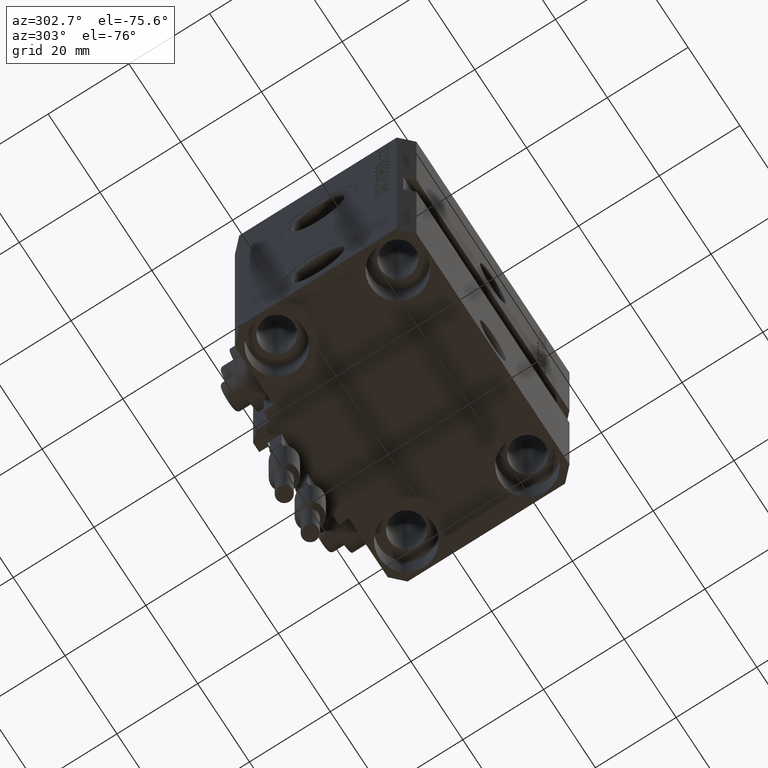
[diagram: clean part render]
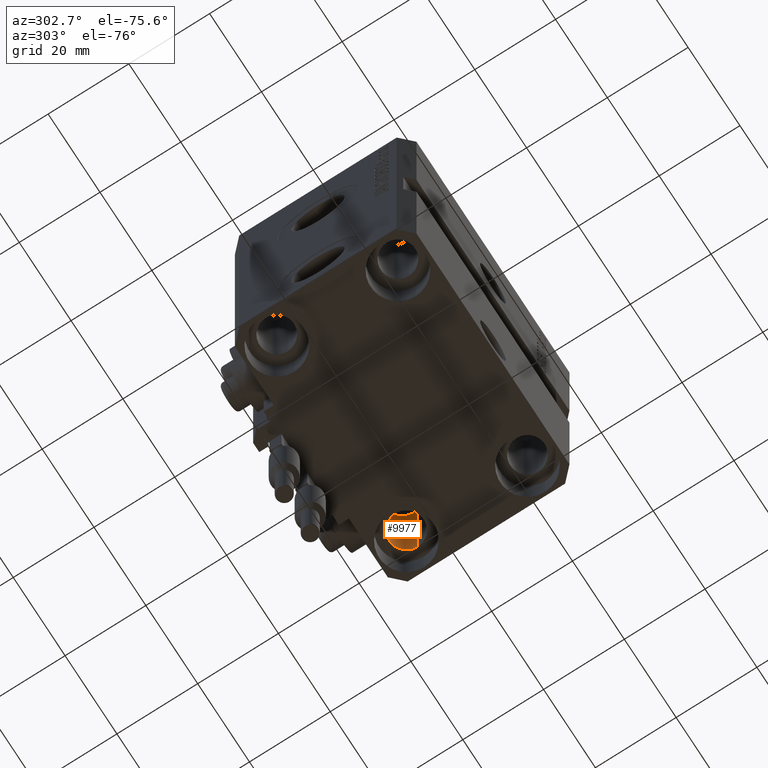
[diagram: same view with one face highlighted and labeled with its STEP entity id]
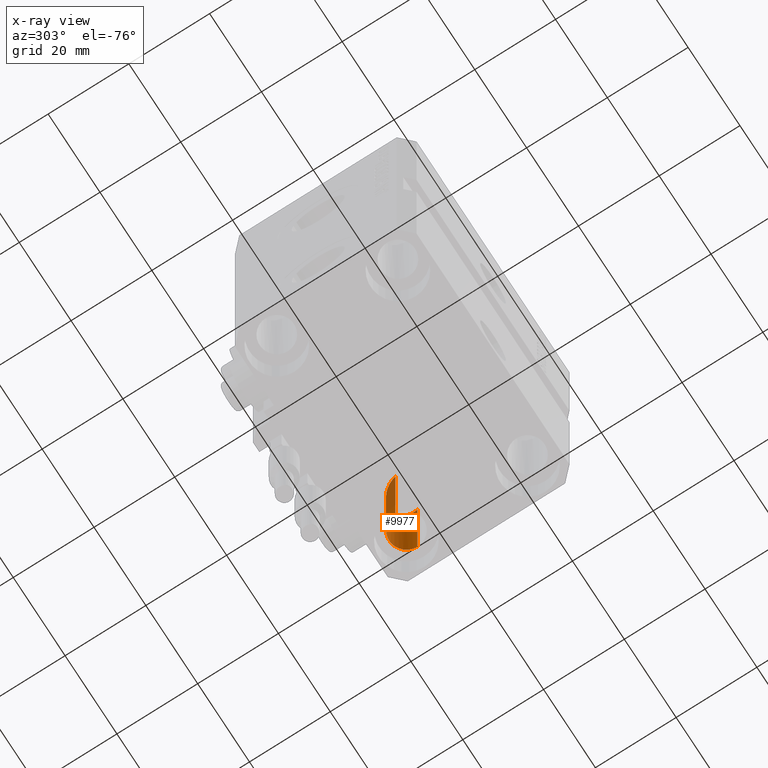
[diagram: x-ray of the same camera — body ghosted, the highlighted face saturated]
A machine part, auxiliary view. The second image highlights one B-rep face of the part: STEP entity #9977.
The next image is the same camera in x-ray: the body ghosted, the highlighted face saturated — about 20% of this face is hidden behind the body in this view.
In plain terms, the highlighted cylindrical surface (edge-blend (fillet) strip) has radius 4.25 mm, axis along (0, 0, 1).
Its self-contained STEP definition (entity closure, byte-faithful):
#3762 = VECTOR ( 'NONE', #37719, 1000.000000000000000 ) ;
#4614 = EDGE_CURVE ( 'NONE', #46274, #9991, #27246, .T. ) ;
#4617 = DIRECTION ( 'NONE',  ( 1.000000000000000000, 0.000000000000000000, 0.000000000000000000 ) ) ;
#5554 = DIRECTION ( 'NONE',  ( -0.000000000000000000, -0.000000000000000000, 1.000000000000000000 ) ) ;
#5800 = DIRECTION ( 'NONE',  ( -1.000000000000000000, 0.000000000000000000, 0.000000000000000000 ) ) ;
#5815 = CARTESIAN_POINT ( 'NONE',  ( 20.75000000002625100, 15.00000000000000711, -36.99999999999999289 ) ) ;
#6099 = ORIENTED_EDGE ( 'NONE', *, *, #4614, .T. ) ;
#8310 = CARTESIAN_POINT ( 'NONE',  ( 29.24999999997375255, 15.00000000000000711, -36.99999999999999289 ) ) ;
#9014 = DIRECTION ( 'NONE',  ( 0.000000000000000000, 0.000000000000000000, -1.000000000000000000 ) ) ;
#9977 = ADVANCED_FACE ( 'NONE', ( #27919 ), #20060, .F. ) ;
#9991 = VERTEX_POINT ( 'NONE', #5815 ) ;
#10477 = CARTESIAN_POINT ( 'NONE',  ( 29.24999999995844746, 15.00000000000000888, -77.00000000000000000 ) ) ;
#11072 = ORIENTED_EDGE ( 'NONE', *, *, #33529, .F. ) ;
#13315 = ORIENTED_EDGE ( 'NONE', *, *, #34367, .T. ) ;
#13439 = EDGE_CURVE ( 'NONE', #31795, #46274, #25938, .T. ) ;
#14251 = CARTESIAN_POINT ( 'NONE',  ( 29.24999999995844746, 15.00000000000000888, -68.00000000000000000 ) ) ;
#14835 = CARTESIAN_POINT ( 'NONE',  ( 29.24999999997375255, 15.00000000000000711, -36.99999999999999289 ) ) ;
#18184 = CARTESIAN_POINT ( 'NONE',  ( 20.75000000002625100, 15.00000000000000711, -36.99999999999999289 ) ) ;
#19283 = AXIS2_PLACEMENT_3D ( 'NONE', #35035, #42885, #4617 ) ;
#20060 = CYLINDRICAL_SURFACE ( 'NONE', #19283, 4.249999999958450125 ) ;
#20518 = CARTESIAN_POINT ( 'NONE',  ( 20.75000000004154899, 15.00000000000000888, -77.00000000000000000 ) ) ;
#20796 = VECTOR ( 'NONE', #5554, 1000.000000000000000 ) ;
#23028 = CARTESIAN_POINT ( 'NONE',  ( 29.24999999997375255, 23.49999999994750866, -45.49999999994748379 ) ) ;
#23147 = CIRCLE ( 'NONE', #29422, 4.249999999958450125 ) ;
#25938 = LINE ( 'NONE', #10477, #3762 ) ;
#27246 =( BOUNDED_CURVE ( )  B_SPLINE_CURVE ( 3, ( #8310, #23028, #30639, #18184 ),
 .UNSPECIFIED., .F., .F. ) 
 B_SPLINE_CURVE_WITH_KNOTS ( ( 4, 4 ),
 ( 1.570796326794896558, 4.712388980384689674 ),
 .UNSPECIFIED. ) 
 CURVE ( )  GEOMETRIC_REPRESENTATION_ITEM ( )  RATIONAL_B_SPLINE_CURVE ( ( 1.000000000000000000, 0.3333333333333333703, 0.3333333333333333703, 1.000000000000000000 ) ) 
 REPRESENTATION_ITEM ( '' )  );
#27919 = FACE_OUTER_BOUND ( 'NONE', #36636, .T. ) ;
#29422 = AXIS2_PLACEMENT_3D ( 'NONE', #47846, #9014, #5800 ) ;
#30639 = CARTESIAN_POINT ( 'NONE',  ( 20.75000000002625100, 23.49999999994750866, -45.49999999994748379 ) ) ;
#31795 = VERTEX_POINT ( 'NONE', #14251 ) ;
#33529 = EDGE_CURVE ( 'NONE', #45164, #9991, #46525, .T. ) ;
#34367 = EDGE_CURVE ( 'NONE', #45164, #31795, #23147, .T. ) ;
#34411 = ORIENTED_EDGE ( 'NONE', *, *, #13439, .T. ) ;
#35035 = CARTESIAN_POINT ( 'NONE',  ( 24.99999999999999645, 15.00000000000000888, -77.00000000000000000 ) ) ;
#36636 = EDGE_LOOP ( 'NONE', ( #11072, #13315, #34411, #6099 ) ) ;
#37719 = DIRECTION ( 'NONE',  ( -0.000000000000000000, -0.000000000000000000, 1.000000000000000000 ) ) ;
#42885 = DIRECTION ( 'NONE',  ( -0.000000000000000000, -0.000000000000000000, 1.000000000000000000 ) ) ;
#45164 = VERTEX_POINT ( 'NONE', #47777 ) ;
#46274 = VERTEX_POINT ( 'NONE', #14835 ) ;
#46525 = LINE ( 'NONE', #20518, #20796 ) ;
#47777 = CARTESIAN_POINT ( 'NONE',  ( 20.75000000004154899, 15.00000000000000888, -68.00000000000000000 ) ) ;
#47846 = CARTESIAN_POINT ( 'NONE',  ( 24.99999999999999645, 15.00000000000000888, -68.00000000000000000 ) ) ;